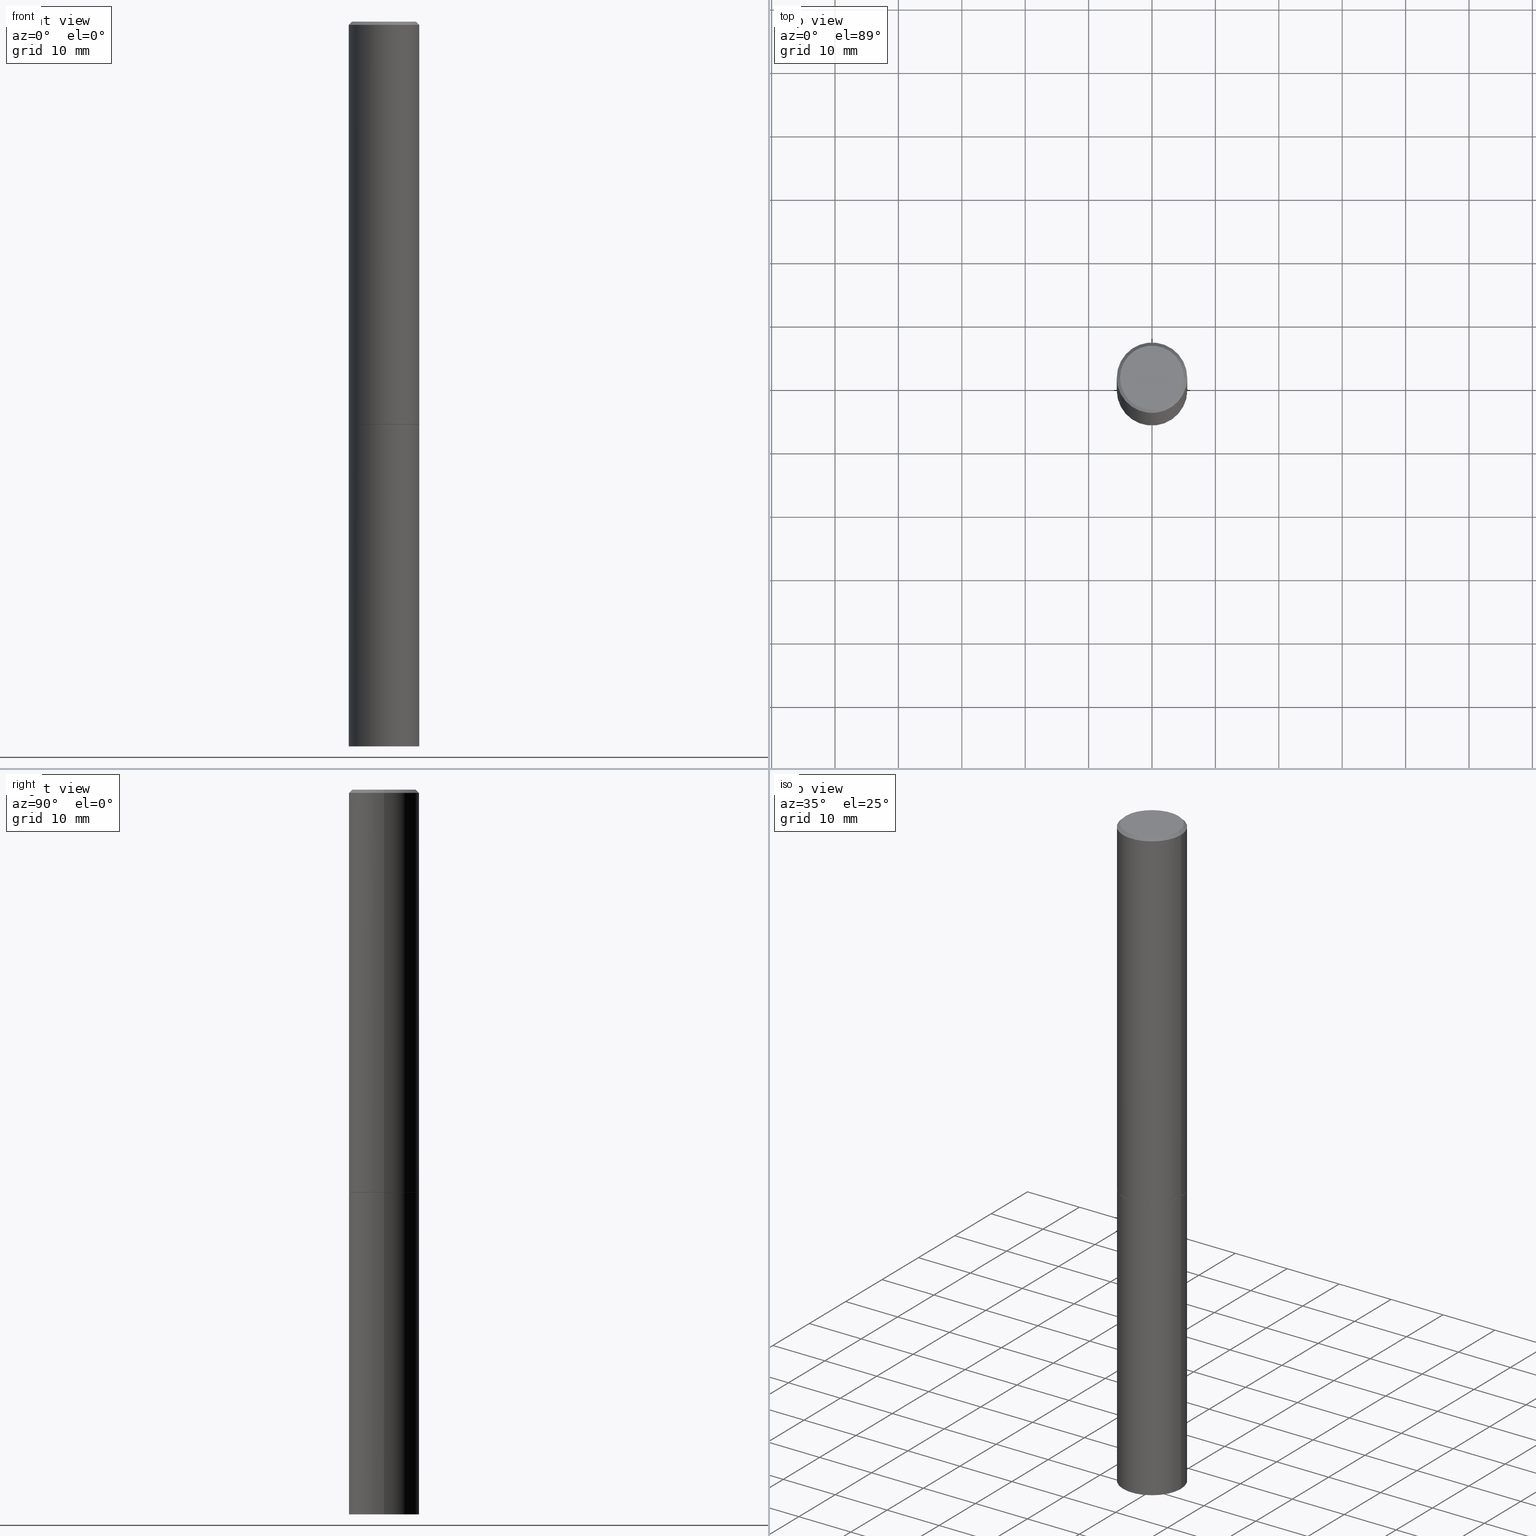
[diagram: canonical four-view strip — front | top / right | iso, engineering-drawing reading convention]
A machine part, canonical four-view strip (front | top / right | iso — engineering-drawing reading convention). The complete STEP part file that produces these views, byte-faithful:
ISO-10303-21;
HEADER;
FILE_DESCRIPTION (( 'STEP AP203' ),
    '1' );
FILE_NAME ('31827.STEP',
    '2024-02-27T13:47:24',
    ( '' ),
    ( '' ),
    'SwSTEP 2.0',
    'SolidWorks 2023',
    '' );
FILE_SCHEMA (( 'CONFIG_CONTROL_DESIGN' ));
ENDSEC;

DATA;
#1 = DIRECTION ( 'NONE',  ( -0.7071067811865464625, 2.468850131082245622E-15, -0.7071067811865485719 ) ) ;
#2 = CIRCLE ( 'NONE', #205, 0.2187499999999996114 ) ;
#3 = AXIS2_PLACEMENT_3D ( 'NONE', #258, #84, #166 ) ;
#4 = DIRECTION ( 'NONE',  ( 1.000000000000000000, -6.982962677686266711E-15, 4.876104016579886393E-29 ) ) ;
#5 = LINE ( 'NONE', #158, #257 ) ;
#6 = PLANE ( 'NONE',  #87 ) ;
#7 = CC_DESIGN_APPROVAL ( #344, ( #361 ) ) ;
#8 = DIRECTION ( 'NONE',  ( 1.000000000000000000, -6.982962677686265922E-15, 4.876176775795935793E-29 ) ) ;
#9 = EDGE_LOOP ( 'NONE', ( #115, #279, #15, #196 ) ) ;
#10 = COORDINATED_UNIVERSAL_TIME_OFFSET ( 5, 0, .BEHIND. ) ;
#11 = PRODUCT ( '31827', '31827', '', ( #95 ) ) ;
#12 = FACE_OUTER_BOUND ( 'NONE', #74, .T. ) ;
#13 = CIRCLE ( 'NONE', #245, 0.1987499999999995937 ) ;
#14 = CARTESIAN_POINT ( 'NONE',  ( 6.113672015462842613E-29, -8.728703347107864943E-15, -2.500000000000000000 ) ) ;
#15 = ORIENTED_EDGE ( 'NONE', *, *, #155, .F. ) ;
#16 = DIRECTION ( 'NONE',  ( -2.445468806185136597E-29, 3.491481338843145583E-15, 1.000000000000000000 ) ) ;
#17 = CIRCLE ( 'NONE', #47, 0.2187499999999999445 ) ;
#18 = ORGANIZATION ( 'UNSPECIFIED', 'UNSPECIFIED', '' ) ;
#19 = DIRECTION ( 'NONE',  ( -2.445468806185136877E-29, 3.491481338843145188E-15, 1.000000000000000000 ) ) ;
#20 = ORIENTED_EDGE ( 'NONE', *, *, #231, .T. ) ;
#21 = MANIFOLD_SOLID_BREP ( 'Body-Move/Copy2[2]', #66 ) ;
#22 = VERTEX_POINT ( 'NONE', #65 ) ;
#23 = CC_DESIGN_PERSON_AND_ORGANIZATION_ASSIGNMENT ( #358, #327, ( #93 ) ) ;
#24 = EDGE_LOOP ( 'NONE', ( #285, #343, #340, #144 ) ) ;
#25 = AXIS2_PLACEMENT_3D ( 'NONE', #55, #235, #187 ) ;
#26 = CARTESIAN_POINT ( 'NONE',  ( 6.113672015462842613E-29, -8.728703347107864943E-15, -2.500000000000000000 ) ) ;
#27 = DIRECTION ( 'NONE',  ( -2.445468806185136597E-29, 3.491481338843145583E-15, 1.000000000000000000 ) ) ;
#28 = APPROVAL_ROLE ( '' ) ;
#29 = CARTESIAN_POINT ( 'NONE',  ( 6.111226546656659252E-29, -8.725211865769023513E-15, -2.499000000000000998 ) ) ;
#30 = AXIS2_PLACEMENT_3D ( 'NONE', #128, #126, #35 ) ;
#31 = EDGE_CURVE ( 'NONE', #316, #302, #190, .T. ) ;
#32 = APPROVAL_DATE_TIME ( #320, #344 ) ;
#33 = CARTESIAN_POINT ( 'NONE',  ( 0.2187499999999996114, -1.570563563789383066E-15, -0.02000000000000008021 ) ) ;
#34 = PERSON_AND_ORGANIZATION ( #178, #18 ) ;
#35 = DIRECTION ( 'NONE',  ( 1.000000000000000000, -6.982962677686262766E-15, 0.000000000000000000 ) ) ;
#36 = APPLICATION_CONTEXT ( 'configuration controlled 3d designs of mechanical parts and assemblies' ) ;
#37 = EDGE_CURVE ( 'NONE', #52, #331, #191, .T. ) ;
#38 = PLANE ( 'NONE',  #79 ) ;
#39 = CC_DESIGN_PERSON_AND_ORGANIZATION_ASSIGNMENT ( #124, #296, ( #123 ) ) ;
#40 = ORIENTED_EDGE ( 'NONE', *, *, #149, .T. ) ;
#41 = CARTESIAN_POINT ( 'NONE',  ( 0.2177499999999999991, -1.024924347017404898E-14, -2.500000000000000000 ) ) ;
#42 = VECTOR ( 'NONE', #169, 39.37007874015748854 ) ;
#43 = DESIGN_CONTEXT ( 'detailed design', #36, 'design' ) ;
#44 = COORDINATED_UNIVERSAL_TIME_OFFSET ( 5, 0, .BEHIND. ) ;
#45 = ORIENTED_EDGE ( 'NONE', *, *, #134, .F. ) ;
#46 = DIRECTION ( 'NONE',  ( 1.000000000000000000, -6.982962677686266711E-15, 4.876176775795935232E-29 ) ) ;
#47 = AXIS2_PLACEMENT_3D ( 'NONE', #29, #181, #366 ) ;
#48 = DIRECTION ( 'NONE',  ( 1.000000000000000000, -6.982962677686262766E-15, 0.000000000000000000 ) ) ;
#49 = ORIENTED_EDGE ( 'NONE', *, *, #88, .F. ) ;
#50 = EDGE_CURVE ( 'NONE', #77, #22, #217, .T. ) ;
#51 = DIRECTION ( 'NONE',  ( 1.000000000000000000, -6.982962677686262766E-15, 0.000000000000000000 ) ) ;
#52 = VERTEX_POINT ( 'NONE', #105 ) ;
#53 = AXIS2_PLACEMENT_3D ( 'NONE', #277, #145, #253 ) ;
#54 = CC_DESIGN_SECURITY_CLASSIFICATION ( #361, ( #123 ) ) ;
#55 = CARTESIAN_POINT ( 'NONE',  ( 6.113672015462842613E-29, -8.728703347107864943E-15, -2.500000000000000000 ) ) ;
#56 = CALENDAR_DATE ( 2024, 27, 2 ) ;
#57 = DIRECTION ( 'NONE',  ( 1.000000000000000000, -6.982962677686262766E-15, 0.000000000000000000 ) ) ;
#58 = ADVANCED_FACE ( 'NONE', ( #249 ), #313, .T. ) ;
#59 = COORDINATED_UNIVERSAL_TIME_OFFSET ( 5, 0, .BEHIND. ) ;
#60 = FACE_OUTER_BOUND ( 'NONE', #276, .T. ) ;
#61 = AXIS2_PLACEMENT_3D ( 'NONE', #297, #271, #272 ) ;
#62 = DIRECTION ( 'NONE',  ( 1.000000000000000000, -6.982962677686266711E-15, 0.000000000000000000 ) ) ;
#63 = ADVANCED_FACE ( 'NONE', ( #167 ), #193, .T. ) ;
#64 = CARTESIAN_POINT ( 'NONE',  ( -0.2187500000000000000, -1.066587245147579176E-14, -2.500000000000000000 ) ) ;
#65 = CARTESIAN_POINT ( 'NONE',  ( -0.2187499999999996114, 1.457693458967004981E-15, -0.02000000000000008021 ) ) ;
#66 = CLOSED_SHELL ( 'NONE', ( #106, #119, #58, #198, #69, #180, #341, #164 ) ) ;
#67 = LOCAL_TIME ( 8, 47, 24.00000000000000000, #44 ) ;
#68 = EDGE_LOOP ( 'NONE', ( #256, #150, #225, #49 ) ) ;
#69 = ADVANCED_FACE ( 'NONE', ( #133 ), #280, .T. ) ;
#70 = CARTESIAN_POINT ( 'NONE',  ( 6.113672015462842613E-29, -8.728703347107864943E-15, -2.500000000000000000 ) ) ;
#71 = DIRECTION ( 'NONE',  ( 1.000000000000000000, -6.982962677686266711E-15, 0.000000000000000000 ) ) ;
#72 = VECTOR ( 'NONE', #19, 39.37007874015748143 ) ;
#73 = CC_DESIGN_PERSON_AND_ORGANIZATION_ASSIGNMENT ( #97, #323, ( #11 ) ) ;
#74 = EDGE_LOOP ( 'NONE', ( #281, #254 ) ) ;
#75 = DIRECTION ( 'NONE',  ( -1.000000000000000000, 6.982962677686265922E-15, -4.876176775795935793E-29 ) ) ;
#76 = APPROVAL ( #352, 'UNSPECIFIED' ) ;
#77 = VERTEX_POINT ( 'NONE', #143 ) ;
#78 = LINE ( 'NONE', #113, #282 ) ;
#79 = AXIS2_PLACEMENT_3D ( 'NONE', #328, #100, #75 ) ;
#80 =( CONVERSION_BASED_UNIT ( 'INCH', #157 ) LENGTH_UNIT ( ) NAMED_UNIT ( #299 ) );
#81 = DIRECTION ( 'NONE',  ( -2.445468806185136597E-29, 3.491481338843145583E-15, 1.000000000000000000 ) ) ;
#82 = VERTEX_POINT ( 'NONE', #197 ) ;
#83 = EDGE_CURVE ( 'NONE', #82, #331, #78, .T. ) ;
#84 = DIRECTION ( 'NONE',  ( -2.445468806185136597E-29, 3.491481338843145583E-15, 1.000000000000000000 ) ) ;
#85 = LINE ( 'NONE', #33, #300 ) ;
#86 = CARTESIAN_POINT ( 'NONE',  ( -0.1987499999999995937, 1.422778645578573726E-15, 4.268512490090583644E-18 ) ) ;
#87 = AXIS2_PLACEMENT_3D ( 'NONE', #188, #295, #206 ) ;
#88 = EDGE_CURVE ( 'NONE', #230, #52, #283, .T. ) ;
#89 = DIRECTION ( 'NONE',  ( -0.7071067811868009256, 7.493145998871269239E-15, 0.7071067811862938868 ) ) ;
#90 = DIRECTION ( 'NONE',  ( -2.445468806185136877E-29, 3.491481338843145188E-15, 1.000000000000000000 ) ) ;
#91 = SHAPE_DEFINITION_REPRESENTATION ( #214, #325 ) ;
#92 = CARTESIAN_POINT ( 'NONE',  ( 4.890937612370293302E-31, -6.982962677686318726E-17, -0.02000000000000008021 ) ) ;
#93 = PRODUCT_DEFINITION ( 'UNKNOWN', '', #123, #43 ) ;
#94 = AXIS2_PLACEMENT_3D ( 'NONE', #171, #179, #251 ) ;
#95 = MECHANICAL_CONTEXT ( 'NONE', #172, 'mechanical' ) ;
#96 = PERSON_AND_ORGANIZATION ( #178, #18 ) ;
#97 = PERSON_AND_ORGANIZATION ( #178, #18 ) ;
#98 = DIRECTION ( 'NONE',  ( 1.000000000000000000, 0.000000000000000000, 0.000000000000000000 ) ) ;
#99 = ORIENTED_EDGE ( 'NONE', *, *, #219, .F. ) ;
#100 = DIRECTION ( 'NONE',  ( 2.438088387897960049E-29, -3.491481338843145188E-15, -1.000000000000000000 ) ) ;
#101 = EDGE_LOOP ( 'NONE', ( #324, #233, #116, #99 ) ) ;
#102 = AXIS2_PLACEMENT_3D ( 'NONE', #357, #189, #221 ) ;
#103 = EDGE_CURVE ( 'NONE', #202, #302, #170, .T. ) ;
#104 = DIRECTION ( 'NONE',  ( -2.445468806185136597E-29, 3.491481338843145583E-15, 1.000000000000000000 ) ) ;
#105 = CARTESIAN_POINT ( 'NONE',  ( 0.2187500000000000000, -1.025622643285173500E-14, -2.500000000000000000 ) ) ;
#106 = ADVANCED_FACE ( 'NONE', ( #260 ), #326, .T. ) ;
#107 = AXIS2_PLACEMENT_3D ( 'NONE', #337, #81, #165 ) ;
#108 = CC_DESIGN_APPROVAL ( #76, ( #123 ) ) ;
#109 = ORIENTED_EDGE ( 'NONE', *, *, #50, .F. ) ;
#110 = ORIENTED_EDGE ( 'NONE', *, *, #240, .F. ) ;
#111 = DATE_AND_TIME ( #199, #67 ) ;
#112 = ORIENTED_EDGE ( 'NONE', *, *, #356, .F. ) ;
#113 = CARTESIAN_POINT ( 'NONE',  ( -0.2187500000000000000, 1.554312234475219157E-15, -1.076017050993260622E-29 ) ) ;
#114 =( GEOMETRIC_REPRESENTATION_CONTEXT ( 3 ) GLOBAL_UNCERTAINTY_ASSIGNED_CONTEXT ( ( #117 ) ) GLOBAL_UNIT_ASSIGNED_CONTEXT ( ( #80, #236, #365 ) ) REPRESENTATION_CONTEXT ( 'NONE', 'WORKASPACE' ) );
#115 = ORIENTED_EDGE ( 'NONE', *, *, #141, .T. ) ;
#116 = ORIENTED_EDGE ( 'NONE', *, *, #88, .T. ) ;
#117 = UNCERTAINTY_MEASURE_WITH_UNIT (LENGTH_MEASURE( 1.000000000000000082E-05 ), #80, 'distance_accuracy_value', 'NONE');
#118 = LINE ( 'NONE', #121, #223 ) ;
#119 = ADVANCED_FACE ( 'NONE', ( #175 ), #255, .T. ) ;
#120 = PERSON_AND_ORGANIZATION_ROLE ( 'classification_officer' ) ;
#121 = CARTESIAN_POINT ( 'NONE',  ( -0.2177499999999999991, -7.181496539990246005E-15, -2.500000000000000000 ) ) ;
#122 = AXIS2_PLACEMENT_3D ( 'NONE', #14, #275, #140 ) ;
#123 = PRODUCT_DEFINITION_FORMATION_WITH_SPECIFIED_SOURCE ( 'ANY', '', #11, .NOT_KNOWN. ) ;
#124 = PERSON_AND_ORGANIZATION ( #178, #18 ) ;
#125 =( LENGTH_UNIT ( ) NAMED_UNIT ( * ) SI_UNIT ( $, .METRE. ) );
#126 = DIRECTION ( 'NONE',  ( -2.445468806185136597E-29, 3.491481338843145583E-15, 1.000000000000000000 ) ) ;
#127 = SECURITY_CLASSIFICATION_LEVEL ( 'unclassified' ) ;
#128 = CARTESIAN_POINT ( 'NONE',  ( 6.113672015462842613E-29, -8.728703347107864943E-15, -2.500000000000000000 ) ) ;
#129 = APPROVAL_STATUS ( 'not_yet_approved' ) ;
#130 = LOCAL_TIME ( 8, 47, 24.00000000000000000, #209 ) ;
#131 = APPROVAL_STATUS ( 'not_yet_approved' ) ;
#132 = COORDINATED_UNIVERSAL_TIME_OFFSET ( 5, 0, .BEHIND. ) ;
#133 = FACE_OUTER_BOUND ( 'NONE', #24, .T. ) ;
#134 = EDGE_CURVE ( 'NONE', #226, #202, #118, .T. ) ;
#135 = CALENDAR_DATE ( 2024, 27, 2 ) ;
#136 = APPROVAL_ROLE ( '' ) ;
#137 = LOCAL_TIME ( 8, 47, 24.00000000000000000, #10 ) ;
#138 = PLANE ( 'NONE',  #211 ) ;
#139 = CARTESIAN_POINT ( 'NONE',  ( 0.000000000000000000, 0.000000000000000000, 0.000000000000000000 ) ) ;
#140 = DIRECTION ( 'NONE',  ( 1.000000000000000000, -6.982962677686267499E-15, 0.000000000000000000 ) ) ;
#141 = EDGE_CURVE ( 'NONE', #316, #226, #359, .T. ) ;
#142 = AXIS2_PLACEMENT_3D ( 'NONE', #311, #27, #207 ) ;
#143 = CARTESIAN_POINT ( 'NONE',  ( 0.2187499999999996114, -1.570563563789383066E-15, -0.02000000000000008021 ) ) ;
#144 = ORIENTED_EDGE ( 'NONE', *, *, #149, .F. ) ;
#145 = DIRECTION ( 'NONE',  ( -2.445468806185136597E-29, 3.491481338843145583E-15, 1.000000000000000000 ) ) ;
#146 = PERSON_AND_ORGANIZATION ( #178, #18 ) ;
#147 = ORIENTED_EDGE ( 'NONE', *, *, #31, .T. ) ;
#148 = PERSON_AND_ORGANIZATION ( #178, #18 ) ;
#149 = EDGE_CURVE ( 'NONE', #22, #77, #2, .T. ) ;
#150 = ORIENTED_EDGE ( 'NONE', *, *, #83, .T. ) ;
#151 = AXIS2_PLACEMENT_3D ( 'NONE', #26, #185, #57 ) ;
#152 = CC_DESIGN_APPROVAL ( #215, ( #93 ) ) ;
#153 = ORIENTED_EDGE ( 'NONE', *, *, #274, .F. ) ;
#154 = LINE ( 'NONE', #162, #307 ) ;
#155 = EDGE_CURVE ( 'NONE', #302, #202, #17, .T. ) ;
#156 = DIRECTION ( 'NONE',  ( 1.000000000000000000, -6.982962677686266711E-15, 4.876104016579886393E-29 ) ) ;
#157 = LENGTH_MEASURE_WITH_UNIT ( LENGTH_MEASURE( 0.02539999999999999897 ), #125 );
#158 = CARTESIAN_POINT ( 'NONE',  ( -0.2187499999999996114, 1.457693458967004981E-15, -0.02000000000000008021 ) ) ;
#159 = VECTOR ( 'NONE', #90, 39.37007874015748143 ) ;
#160 = CIRCLE ( 'NONE', #25, 0.2187500000000000000 ) ;
#161 = AXIS2_PLACEMENT_3D ( 'NONE', #195, #16, #46 ) ;
#162 = CARTESIAN_POINT ( 'NONE',  ( 0.2187499999999997780, -1.527523085743869265E-15, 1.066663669705359904E-29 ) ) ;
#163 = MANIFOLD_SOLID_BREP ( 'Body-Move/Copy2[1]', #227 ) ;
#164 = ADVANCED_FACE ( 'NONE', ( #321 ), #6, .F. ) ;
#165 = DIRECTION ( 'NONE',  ( 1.000000000000000000, -6.982962677686266711E-15, 4.876176775795935793E-29 ) ) ;
#166 = DIRECTION ( 'NONE',  ( 1.000000000000000000, -6.982962677686262766E-15, 0.000000000000000000 ) ) ;
#167 = FACE_OUTER_BOUND ( 'NONE', #68, .T. ) ;
#168 = EDGE_CURVE ( 'NONE', #226, #316, #267, .T. ) ;
#169 = DIRECTION ( 'NONE',  ( 0.7071067811868009256, -2.468850131084911578E-15, 0.7071067811862938868 ) ) ;
#170 = CIRCLE ( 'NONE', #53, 0.2187499999999999445 ) ;
#171 = CARTESIAN_POINT ( 'NONE',  ( 0.000000000000000000, 0.000000000000000000, 0.000000000000000000 ) ) ;
#172 = APPLICATION_CONTEXT ( 'configuration controlled 3d designs of mechanical parts and assemblies' ) ;
#173 = ORIENTED_EDGE ( 'NONE', *, *, #219, .T. ) ;
#174 = ADVANCED_FACE ( 'NONE', ( #288 ), #237, .T. ) ;
#175 = FACE_OUTER_BOUND ( 'NONE', #363, .T. ) ;
#176 = EDGE_LOOP ( 'NONE', ( #360, #20 ) ) ;
#177 = PRODUCT_RELATED_PRODUCT_CATEGORY ( 'detail', '', ( #11 ) ) ;
#178 = PERSON ( 'UNSPECIFIED', 'UNSPECIFIED', 'UNSPECIFIED', ('UNSPECIFIED'), ('UNSPECIFIED'), ('UNSPECIFIED') ) ;
#179 = DIRECTION ( 'NONE',  ( -2.445468806185136597E-29, 3.491481338843145583E-15, 1.000000000000000000 ) ) ;
#180 = ADVANCED_FACE ( 'NONE', ( #60 ), #303, .T. ) ;
#181 = DIRECTION ( 'NONE',  ( -2.445468806185136597E-29, 3.491481338843145583E-15, 1.000000000000000000 ) ) ;
#182 = APPROVAL_PERSON_ORGANIZATION ( #146, #76, #136 ) ;
#183 = ORIENTED_EDGE ( 'NONE', *, *, #286, .F. ) ;
#184 = CARTESIAN_POINT ( 'NONE',  ( -0.2177499999999999991, -7.176198085642026759E-15, -2.500000000000000000 ) ) ;
#185 = DIRECTION ( 'NONE',  ( -2.445468806185136597E-29, 3.491481338843145583E-15, 1.000000000000000000 ) ) ;
#186 = EDGE_LOOP ( 'NONE', ( #110, #183, #301, #40 ) ) ;
#187 = DIRECTION ( 'NONE',  ( 1.000000000000000000, -6.982962677686267499E-15, 0.000000000000000000 ) ) ;
#188 = CARTESIAN_POINT ( 'NONE',  ( 1.387863832190142472E-15, 0.1987499999999995937, -6.917976598500235863E-16 ) ) ;
#189 = DIRECTION ( 'NONE',  ( 2.445468806185136597E-29, -3.491481338843145583E-15, -1.000000000000000000 ) ) ;
#190 = LINE ( 'NONE', #41, #42 ) ;
#191 = CIRCLE ( 'NONE', #122, 0.2187500000000000000 ) ;
#192 = EDGE_CURVE ( 'NONE', #302, #77, #154, .T. ) ;
#193 = CYLINDRICAL_SURFACE ( 'NONE', #61, 0.2187500000000000000 ) ;
#194 = CONICAL_SURFACE ( 'NONE', #364, 0.2187499999999996114, 0.7853981633974468357 ) ;
#195 = CARTESIAN_POINT ( 'NONE',  ( 0.000000000000000000, 0.000000000000000000, 0.000000000000000000 ) ) ;
#196 = ORIENTED_EDGE ( 'NONE', *, *, #31, .F. ) ;
#197 = CARTESIAN_POINT ( 'NONE',  ( -0.2187500000000000000, -1.066587245147579176E-14, -4.500000000000000000 ) ) ;
#198 = ADVANCED_FACE ( 'NONE', ( #318 ), #194, .T. ) ;
#199 = CALENDAR_DATE ( 2024, 27, 2 ) ;
#200 = ORIENTED_EDGE ( 'NONE', *, *, #192, .F. ) ;
#201 = AXIS2_PLACEMENT_3D ( 'NONE', #355, #104, #71 ) ;
#202 = VERTEX_POINT ( 'NONE', #204 ) ;
#203 = CARTESIAN_POINT ( 'NONE',  ( 0.1987499999999995937, -1.467043770423235889E-15, 4.268512490110393759E-18 ) ) ;
#204 = CARTESIAN_POINT ( 'NONE',  ( -0.2187500000000000000, -2.843208511797721488E-15, -2.499000000000000998 ) ) ;
#205 = AXIS2_PLACEMENT_3D ( 'NONE', #270, #210, #62 ) ;
#206 = DIRECTION ( 'NONE',  ( -1.000000000000000000, 6.982962677686265922E-15, -4.876176775795935793E-29 ) ) ;
#207 = DIRECTION ( 'NONE',  ( 1.000000000000000000, -6.982962677686262766E-15, 0.000000000000000000 ) ) ;
#208 = EDGE_CURVE ( 'NONE', #284, #22, #5, .T. ) ;
#209 = COORDINATED_UNIVERSAL_TIME_OFFSET ( 5, 0, .BEHIND. ) ;
#210 = DIRECTION ( 'NONE',  ( -2.445468806185136597E-29, 3.491481338843145583E-15, 1.000000000000000000 ) ) ;
#211 = AXIS2_PLACEMENT_3D ( 'NONE', #70, #265, #8 ) ;
#212 = CC_DESIGN_PERSON_AND_ORGANIZATION_ASSIGNMENT ( #34, #242, ( #123 ) ) ;
#213 = DATE_AND_TIME ( #56, #130 ) ;
#214 = PRODUCT_DEFINITION_SHAPE ( 'NONE', 'NONE',  #93 ) ;
#215 = APPROVAL ( #129, 'UNSPECIFIED' ) ;
#216 = PERSON_AND_ORGANIZATION ( #178, #18 ) ;
#217 = CIRCLE ( 'NONE', #201, 0.2187499999999996114 ) ;
#218 = CIRCLE ( 'NONE', #3, 0.2187500000000000000 ) ;
#219 = EDGE_CURVE ( 'NONE', #331, #52, #160, .T. ) ;
#220 = DATE_AND_TIME ( #224, #137 ) ;
#221 = DIRECTION ( 'NONE',  ( -1.000000000000000000, 6.982962677686266711E-15, 0.000000000000000000 ) ) ;
#222 = APPROVAL_DATE_TIME ( #220, #76 ) ;
#223 = VECTOR ( 'NONE', #89, 39.37007874015748854 ) ;
#224 = CALENDAR_DATE ( 2024, 27, 2 ) ;
#225 = ORIENTED_EDGE ( 'NONE', *, *, #37, .F. ) ;
#226 = VERTEX_POINT ( 'NONE', #184 ) ;
#227 = CLOSED_SHELL ( 'NONE', ( #63, #174, #304, #333 ) ) ;
#228 = CYLINDRICAL_SURFACE ( 'NONE', #161, 0.2187500000000000000 ) ;
#229 = CARTESIAN_POINT ( 'NONE',  ( 6.113672015462842613E-29, -8.728703347107864943E-15, -2.500000000000000000 ) ) ;
#230 = VERTEX_POINT ( 'NONE', #342 ) ;
#231 = EDGE_CURVE ( 'NONE', #263, #284, #13, .T. ) ;
#232 = CARTESIAN_POINT ( 'NONE',  ( 1.527523085743980692E-15, 0.2187499999999842903, -4.500000000000000888 ) ) ;
#233 = ORIENTED_EDGE ( 'NONE', *, *, #356, .T. ) ;
#234 = APPLICATION_PROTOCOL_DEFINITION ( 'international standard', 'config_control_design', 1994, #172 ) ;
#235 = DIRECTION ( 'NONE',  ( -2.445468806185136597E-29, 3.491481338843145583E-15, 1.000000000000000000 ) ) ;
#236 =( NAMED_UNIT ( * ) PLANE_ANGLE_UNIT ( ) SI_UNIT ( $, .RADIAN. ) );
#237 = PLANE ( 'NONE',  #238 ) ;
#238 = AXIS2_PLACEMENT_3D ( 'NONE', #232, #269, #243 ) ;
#239 = APPROVAL_PERSON_ORGANIZATION ( #148, #215, #298 ) ;
#240 = EDGE_CURVE ( 'NONE', #263, #77, #85, .T. ) ;
#241 = LINE ( 'NONE', #347, #159 ) ;
#242 = PERSON_AND_ORGANIZATION_ROLE ( 'creator' ) ;
#243 = DIRECTION ( 'NONE',  ( -1.000000000000000000, 6.982962677686265922E-15, -4.876176775795935793E-29 ) ) ;
#244 = DIRECTION ( 'NONE',  ( 0.000000000000000000, 0.000000000000000000, 1.000000000000000000 ) ) ;
#245 = AXIS2_PLACEMENT_3D ( 'NONE', #290, #339, #156 ) ;
#246 = ORIENTED_EDGE ( 'NONE', *, *, #208, .F. ) ;
#247 = FACE_OUTER_BOUND ( 'NONE', #329, .T. ) ;
#248 = CIRCLE ( 'NONE', #319, 0.1987499999999995937 ) ;
#249 = FACE_OUTER_BOUND ( 'NONE', #287, .T. ) ;
#250 = CARTESIAN_POINT ( 'NONE',  ( 0.2187500000000000000, -1.527523085743870843E-15, 1.066663669705360885E-29 ) ) ;
#251 = DIRECTION ( 'NONE',  ( 1.000000000000000000, -6.982962677686266711E-15, 4.876176775795935793E-29 ) ) ;
#252 = ORIENTED_EDGE ( 'NONE', *, *, #37, .T. ) ;
#253 = DIRECTION ( 'NONE',  ( 1.000000000000000000, -6.982962677686269077E-15, 0.000000000000000000 ) ) ;
#254 = ORIENTED_EDGE ( 'NONE', *, *, #168, .F. ) ;
#255 = CYLINDRICAL_SURFACE ( 'NONE', #107, 0.2187499999999997780 ) ;
#256 = ORIENTED_EDGE ( 'NONE', *, *, #274, .T. ) ;
#257 = VECTOR ( 'NONE', #1, 39.37007874015748143 ) ;
#258 = CARTESIAN_POINT ( 'NONE',  ( 1.100460962783311469E-28, -1.571166602479415690E-14, -4.500000000000000000 ) ) ;
#259 = AXIS2_PLACEMENT_3D ( 'NONE', #139, #244, #98 ) ;
#260 = FACE_OUTER_BOUND ( 'NONE', #9, .T. ) ;
#261 = ORIENTED_EDGE ( 'NONE', *, *, #50, .T. ) ;
#262 = DIRECTION ( 'NONE',  ( -1.000000000000000000, 6.982962677686266711E-15, 0.000000000000000000 ) ) ;
#263 = VERTEX_POINT ( 'NONE', #203 ) ;
#264 = DIRECTION ( 'NONE',  ( -2.445468806185136597E-29, 3.491481338843145583E-15, 1.000000000000000000 ) ) ;
#265 = DIRECTION ( 'NONE',  ( -2.438088387897960049E-29, 3.491481338843145188E-15, 1.000000000000000000 ) ) ;
#266 = DIRECTION ( 'NONE',  ( 0.7071067811865464625, -7.319954787623252890E-15, -0.7071067811865485719 ) ) ;
#267 = CIRCLE ( 'NONE', #30, 0.2177499999999999991 ) ;
#268 = CC_DESIGN_PERSON_AND_ORGANIZATION_ASSIGNMENT ( #96, #120, ( #361 ) ) ;
#269 = DIRECTION ( 'NONE',  ( 2.438088387897960049E-29, -3.491481338843145188E-15, -1.000000000000000000 ) ) ;
#270 = CARTESIAN_POINT ( 'NONE',  ( 4.890937612370293302E-31, -6.982962677686318726E-17, -0.02000000000000008021 ) ) ;
#271 = DIRECTION ( 'NONE',  ( -2.445468806185136597E-29, 3.491481338843145583E-15, 1.000000000000000000 ) ) ;
#272 = DIRECTION ( 'NONE',  ( 1.000000000000000000, -6.982962677686266711E-15, 4.876176775795935232E-29 ) ) ;
#273 = ORIENTED_EDGE ( 'NONE', *, *, #103, .F. ) ;
#274 = EDGE_CURVE ( 'NONE', #230, #82, #354, .T. ) ;
#275 = DIRECTION ( 'NONE',  ( -2.445468806185136597E-29, 3.491481338843145583E-15, 1.000000000000000000 ) ) ;
#276 = EDGE_LOOP ( 'NONE', ( #45, #309, #147, #273 ) ) ;
#277 = CARTESIAN_POINT ( 'NONE',  ( 6.111226546656659252E-29, -8.725211865769023513E-15, -2.499000000000000998 ) ) ;
#278 = CC_DESIGN_DATE_AND_TIME_ASSIGNMENT ( #111, #312, ( #93 ) ) ;
#279 = ORIENTED_EDGE ( 'NONE', *, *, #134, .T. ) ;
#280 = CYLINDRICAL_SURFACE ( 'NONE', #94, 0.2187499999999997780 ) ;
#281 = ORIENTED_EDGE ( 'NONE', *, *, #141, .F. ) ;
#282 = VECTOR ( 'NONE', #306, 39.37007874015748143 ) ;
#283 = LINE ( 'NONE', #250, #72 ) ;
#284 = VERTEX_POINT ( 'NONE', #86 ) ;
#285 = ORIENTED_EDGE ( 'NONE', *, *, #291, .F. ) ;
#286 = EDGE_CURVE ( 'NONE', #284, #263, #248, .T. ) ;
#287 = EDGE_LOOP ( 'NONE', ( #332, #310, #261, #246 ) ) ;
#288 = FACE_OUTER_BOUND ( 'NONE', #305, .T. ) ;
#289 = DATE_AND_TIME ( #135, #314 ) ;
#290 = CARTESIAN_POINT ( 'NONE',  ( -1.043851414335219820E-46, 1.490343170380447200E-32, 4.268512490100411279E-18 ) ) ;
#291 = EDGE_CURVE ( 'NONE', #202, #22, #241, .T. ) ;
#292 = DIRECTION ( 'NONE',  ( -2.445468806185136877E-29, 3.491481338843145188E-15, 1.000000000000000000 ) ) ;
#293 = CALENDAR_DATE ( 2024, 27, 2 ) ;
#294 = CARTESIAN_POINT ( 'NONE',  ( 0.2187499999999999445, -1.025273495151289515E-14, -2.499000000000000998 ) ) ;
#295 = DIRECTION ( 'NONE',  ( 2.438088387897960049E-29, -3.491481338843145188E-15, -1.000000000000000000 ) ) ;
#296 = PERSON_AND_ORGANIZATION_ROLE ( 'design_supplier' ) ;
#297 = CARTESIAN_POINT ( 'NONE',  ( 0.000000000000000000, 0.000000000000000000, 0.000000000000000000 ) ) ;
#298 = APPROVAL_ROLE ( '' ) ;
#299 = DIMENSIONAL_EXPONENTS ( 1.000000000000000000, 0.000000000000000000, 0.000000000000000000, 0.000000000000000000, 0.000000000000000000, 0.000000000000000000, 0.000000000000000000 ) ;
#300 = VECTOR ( 'NONE', #266, 39.37007874015748143 ) ;
#301 = ORIENTED_EDGE ( 'NONE', *, *, #208, .T. ) ;
#302 = VERTEX_POINT ( 'NONE', #294 ) ;
#303 = CONICAL_SURFACE ( 'NONE', #151, 0.2177499999999999991, 0.7853981633978068810 ) ;
#304 = ADVANCED_FACE ( 'NONE', ( #247 ), #38, .F. ) ;
#305 = EDGE_LOOP ( 'NONE', ( #153, #112 ) ) ;
#306 = DIRECTION ( 'NONE',  ( -2.445468806185136877E-29, 3.491481338843145188E-15, 1.000000000000000000 ) ) ;
#307 = VECTOR ( 'NONE', #292, 39.37007874015748143 ) ;
#308 = DIRECTION ( 'NONE',  ( -2.445468806185136597E-29, 3.491481338843145583E-15, 1.000000000000000000 ) ) ;
#309 = ORIENTED_EDGE ( 'NONE', *, *, #168, .T. ) ;
#310 = ORIENTED_EDGE ( 'NONE', *, *, #240, .T. ) ;
#311 = CARTESIAN_POINT ( 'NONE',  ( 1.100460962783311469E-28, -1.571166602479415690E-14, -4.500000000000000000 ) ) ;
#312 = DATE_TIME_ROLE ( 'creation_date' ) ;
#313 = CONICAL_SURFACE ( 'NONE', #102, 0.2187499999999996114, 0.7853981633974468357 ) ;
#314 = LOCAL_TIME ( 8, 47, 24.00000000000000000, #132 ) ;
#315 = CARTESIAN_POINT ( 'NONE',  ( -1.043851414335219820E-46, 1.490343170380447200E-32, 4.268512490100411279E-18 ) ) ;
#316 = VERTEX_POINT ( 'NONE', #362 ) ;
#317 = DIRECTION ( 'NONE',  ( -2.445468806185136597E-29, 3.491481338843145583E-15, 1.000000000000000000 ) ) ;
#318 = FACE_OUTER_BOUND ( 'NONE', #186, .T. ) ;
#319 = AXIS2_PLACEMENT_3D ( 'NONE', #315, #264, #4 ) ;
#320 = DATE_AND_TIME ( #293, #336 ) ;
#321 = FACE_OUTER_BOUND ( 'NONE', #176, .T. ) ;
#322 = FACE_OUTER_BOUND ( 'NONE', #101, .T. ) ;
#323 = PERSON_AND_ORGANIZATION_ROLE ( 'design_owner' ) ;
#324 = ORIENTED_EDGE ( 'NONE', *, *, #83, .F. ) ;
#325 = ADVANCED_BREP_SHAPE_REPRESENTATION ( '31827', ( #163, #21, #259 ), #114 ) ;
#326 = CONICAL_SURFACE ( 'NONE', #353, 0.2177499999999999991, 0.7853981633978068810 ) ;
#327 = PERSON_AND_ORGANIZATION_ROLE ( 'creator' ) ;
#328 = CARTESIAN_POINT ( 'NONE',  ( 1.527523085743931585E-15, 0.2187499999999912570, -2.500000000000000444 ) ) ;
#329 = EDGE_LOOP ( 'NONE', ( #252, #173 ) ) ;
#330 = CC_DESIGN_DATE_AND_TIME_ASSIGNMENT ( #213, #348, ( #361 ) ) ;
#331 = VERTEX_POINT ( 'NONE', #64 ) ;
#332 = ORIENTED_EDGE ( 'NONE', *, *, #231, .F. ) ;
#333 = ADVANCED_FACE ( 'NONE', ( #322 ), #228, .T. ) ;
#334 = ORIENTED_EDGE ( 'NONE', *, *, #155, .T. ) ;
#335 = AXIS2_PLACEMENT_3D ( 'NONE', #345, #317, #51 ) ;
#336 = LOCAL_TIME ( 8, 47, 24.00000000000000000, #59 ) ;
#337 = CARTESIAN_POINT ( 'NONE',  ( 0.000000000000000000, 0.000000000000000000, 0.000000000000000000 ) ) ;
#338 = ORIENTED_EDGE ( 'NONE', *, *, #291, .T. ) ;
#339 = DIRECTION ( 'NONE',  ( -2.445468806185136597E-29, 3.491481338843145583E-15, 1.000000000000000000 ) ) ;
#340 = ORIENTED_EDGE ( 'NONE', *, *, #192, .T. ) ;
#341 = ADVANCED_FACE ( 'NONE', ( #12 ), #138, .F. ) ;
#342 = CARTESIAN_POINT ( 'NONE',  ( 0.2187500000000000000, -1.723918911053802537E-14, -4.500000000000000000 ) ) ;
#343 = ORIENTED_EDGE ( 'NONE', *, *, #103, .T. ) ;
#344 = APPROVAL ( #131, 'UNSPECIFIED' ) ;
#345 = CARTESIAN_POINT ( 'NONE',  ( 6.113672015462842613E-29, -8.728703347107864943E-15, -2.500000000000000000 ) ) ;
#346 = APPROVAL_DATE_TIME ( #289, #215 ) ;
#347 = CARTESIAN_POINT ( 'NONE',  ( -0.2187499999999997780, 1.554312234475217579E-15, -1.076017050993259501E-29 ) ) ;
#348 = DATE_TIME_ROLE ( 'classification_date' ) ;
#349 = DIRECTION ( 'NONE',  ( 2.445468806185136597E-29, -3.491481338843145583E-15, -1.000000000000000000 ) ) ;
#350 = APPROVAL_PERSON_ORGANIZATION ( #216, #344, #28 ) ;
#351 = APPLICATION_PROTOCOL_DEFINITION ( 'international standard', 'config_control_design', 1994, #36 ) ;
#352 = APPROVAL_STATUS ( 'not_yet_approved' ) ;
#353 = AXIS2_PLACEMENT_3D ( 'NONE', #229, #308, #48 ) ;
#354 = CIRCLE ( 'NONE', #142, 0.2187500000000000000 ) ;
#355 = CARTESIAN_POINT ( 'NONE',  ( 4.890937612370293302E-31, -6.982962677686318726E-17, -0.02000000000000008021 ) ) ;
#356 = EDGE_CURVE ( 'NONE', #82, #230, #218, .T. ) ;
#357 = CARTESIAN_POINT ( 'NONE',  ( 4.890937612370293302E-31, -6.982962677686318726E-17, -0.02000000000000008021 ) ) ;
#358 = PERSON_AND_ORGANIZATION ( #178, #18 ) ;
#359 = CIRCLE ( 'NONE', #335, 0.2177499999999999991 ) ;
#360 = ORIENTED_EDGE ( 'NONE', *, *, #286, .T. ) ;
#361 = SECURITY_CLASSIFICATION ( '', '', #127 ) ;
#362 = CARTESIAN_POINT ( 'NONE',  ( 0.2177499999999999991, -1.024924347017404898E-14, -2.500000000000000000 ) ) ;
#363 = EDGE_LOOP ( 'NONE', ( #334, #338, #109, #200 ) ) ;
#364 = AXIS2_PLACEMENT_3D ( 'NONE', #92, #349, #262 ) ;
#365 =( NAMED_UNIT ( * ) SI_UNIT ( $, .STERADIAN. ) SOLID_ANGLE_UNIT ( ) );
#366 = DIRECTION ( 'NONE',  ( 1.000000000000000000, -6.982962677686269077E-15, 0.000000000000000000 ) ) ;
ENDSEC;
END-ISO-10303-21;
